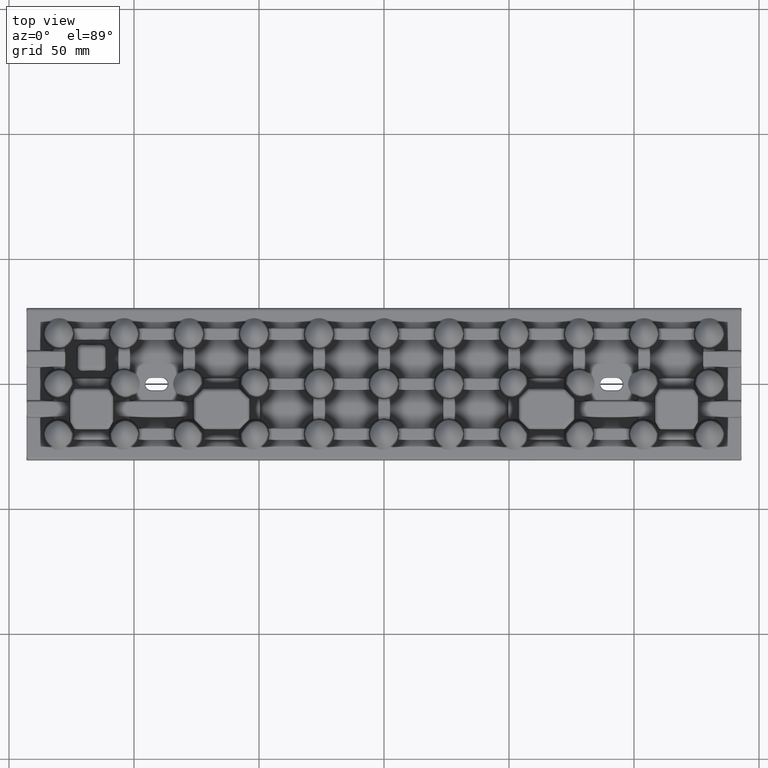
[diagram: clean part render]
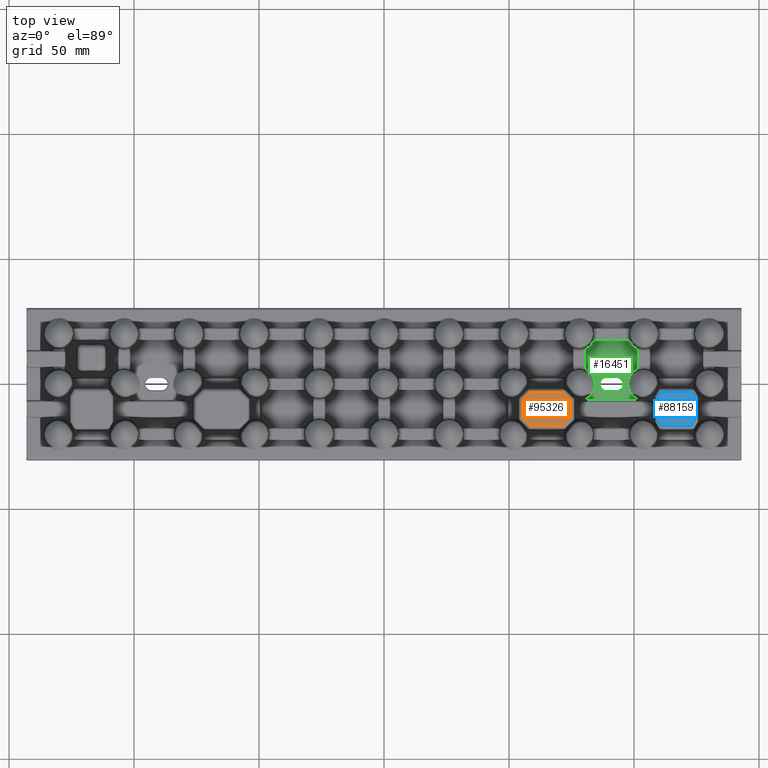
[diagram: same view with three faces highlighted in distinct colors, each labeled with its STEP entity id]
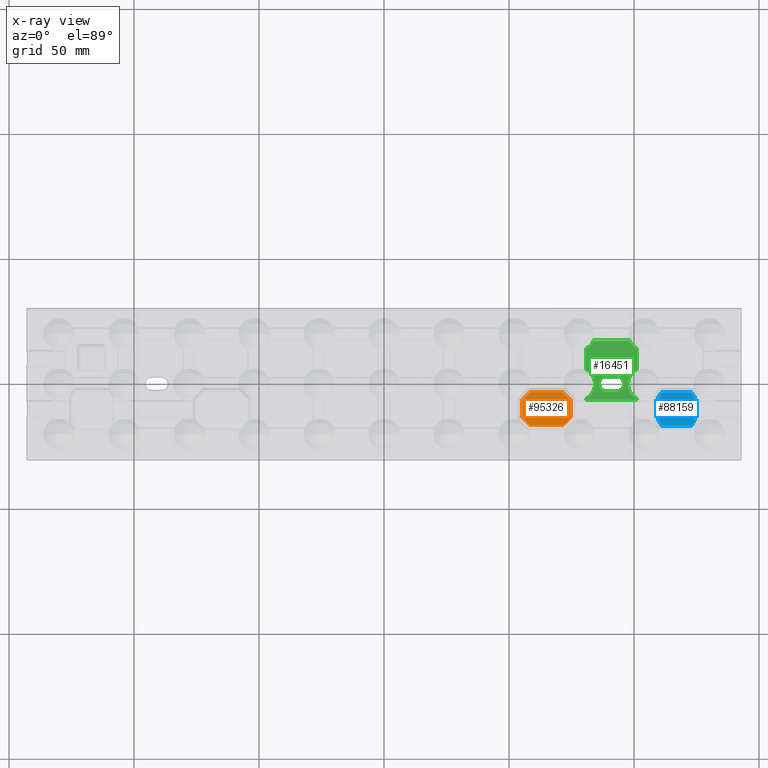
[diagram: x-ray of the same camera — body ghosted, the three highlighted faces saturated]
A machine part, top view with three faces highlighted in distinct colors.
The next image is the same camera in x-ray (body ghosted, the three faces saturated) — at least one of them is partly hidden behind the body in this view.
Their STEP definitions:

[orange] entity #95326 — the highlighted planar face has unit normal (0, 0, -1).
#623 = CARTESIAN_POINT ( 'NONE',  ( 74.91097697223750600, -13.23466900222692600, 6.799999999999999800 ) ) ;
#1122 = CARTESIAN_POINT ( 'NONE',  ( 71.60331889004788800, -16.54232708441655900, 6.799999999999999800 ) ) ;
#5143 = CARTESIAN_POINT ( 'NONE',  ( 57.87533143882816200, -3.457672915583494400, 6.799999999999999800 ) ) ;
#6025 = ORIENTED_EDGE ( 'NONE', *, *, #117788, .T. ) ;
#8063 = DIRECTION ( 'NONE',  ( -0.7071067811865494600, -0.7071067811865455700, -0.0000000000000000000 ) ) ;
#8218 = VERTEX_POINT ( 'NONE', #85997 ) ;
#9365 = AXIS2_PLACEMENT_3D ( 'NONE', #58646, #27067, #102462 ) ;
#14107 = CARTESIAN_POINT ( 'NONE',  ( 74.54232708441645600, -5.875331438828238700, 6.799999999999999800 ) ) ;
#17992 = ORIENTED_EDGE ( 'NONE', *, *, #132163, .T. ) ;
#27067 = DIRECTION ( 'NONE',  ( 0.0000000000000000000, 0.0000000000000000000, -1.000000000000000000 ) ) ;
#38540 = VECTOR ( 'NONE', #8063, 1000.000000000000200 ) ;
#39413 = VECTOR ( 'NONE', #43541, 1000.000000000000100 ) ;
#42873 = VECTOR ( 'NONE', #62626, 1000.000000000000000 ) ;
#43541 = DIRECTION ( 'NONE',  ( 0.7071067811865461300, -0.7071067811865489100, -0.0000000000000000000 ) ) ;
#46242 = LINE ( 'NONE', #127819, #42873 ) ;
#49782 = LINE ( 'NONE', #14107, #132589 ) ;
#50010 = CARTESIAN_POINT ( 'NONE',  ( 71.23466900222682300, -3.089023027762459500, 6.799999999999999800 ) ) ;
#52456 = CARTESIAN_POINT ( 'NONE',  ( 71.60331889004785900, -3.457672915583494900, 6.799999999999999800 ) ) ;
#54349 = ORIENTED_EDGE ( 'NONE', *, *, #56358, .T. ) ;
#54883 = FACE_OUTER_BOUND ( 'NONE', #98913, .T. ) ;
#56358 = EDGE_CURVE ( 'NONE', #132559, #70185, #49782, .T. ) ;
#58646 = CARTESIAN_POINT ( 'NONE',  ( 0.0000000000000000000, 0.0000000000000000000, 6.799999999999999800 ) ) ;
#60803 = DIRECTION ( 'NONE',  ( -0.7071067811865499000, 0.7071067811865452400, -0.0000000000000000000 ) ) ;
#62626 = DIRECTION ( 'NONE',  ( 1.000000000000000000, -0.0000000000000000000, -0.0000000000000000000 ) ) ;
#62878 = CARTESIAN_POINT ( 'NONE',  ( 58.39668110995199900, -3.457672915583494400, 6.799999999999999800 ) ) ;
#63441 = DIRECTION ( 'NONE',  ( 0.0000000000000000000, -1.000000000000000000, -0.0000000000000000000 ) ) ;
#64194 = ORIENTED_EDGE ( 'NONE', *, *, #90524, .T. ) ;
#65001 = ORIENTED_EDGE ( 'NONE', *, *, #121500, .T. ) ;
#65379 = DIRECTION ( 'NONE',  ( 0.7071067811865459100, 0.7071067811865491300, -0.0000000000000000000 ) ) ;
#70185 = VERTEX_POINT ( 'NONE', #131243 ) ;
#70524 = LINE ( 'NONE', #137523, #38540 ) ;
#74842 = LINE ( 'NONE', #118969, #39413 ) ;
#76446 = VERTEX_POINT ( 'NONE', #1122 ) ;
#76742 = VECTOR ( 'NONE', #60803, 1000.000000000000100 ) ;
#77273 = EDGE_CURVE ( 'NONE', #130448, #8218, #70524, .T. ) ;
#78254 = VERTEX_POINT ( 'NONE', #52456 ) ;
#78722 = DIRECTION ( 'NONE',  ( -0.0000000000000000000, 1.000000000000000000, -0.0000000000000000000 ) ) ;
#80088 = CARTESIAN_POINT ( 'NONE',  ( 58.39668110995197700, -16.54232708441655900, 6.799999999999999800 ) ) ;
#80648 = VECTOR ( 'NONE', #63441, 1000.000000000000000 ) ;
#84077 = LINE ( 'NONE', #106302, #80648 ) ;
#85997 = CARTESIAN_POINT ( 'NONE',  ( 55.45767291558339500, -6.396681109952082200, 6.799999999999999800 ) ) ;
#86633 = EDGE_CURVE ( 'NONE', #92886, #104355, #74842, .T. ) ;
#90524 = EDGE_CURVE ( 'NONE', #8218, #92886, #84077, .T. ) ;
#91664 = PLANE ( 'NONE',  #9365 ) ;
#92114 = LINE ( 'NONE', #623, #117439 ) ;
#92886 = VERTEX_POINT ( 'NONE', #123323 ) ;
#93024 = VECTOR ( 'NONE', #102824, 1000.000000000000000 ) ;
#95139 = ORIENTED_EDGE ( 'NONE', *, *, #77273, .T. ) ;
#95326 = ADVANCED_FACE ( 'NONE', ( #54883 ), #91664, .F. ) ;
#96407 = LINE ( 'NONE', #5143, #93024 ) ;
#98913 = EDGE_LOOP ( 'NONE', ( #54349, #6025, #116505, #95139, #64194, #99450, #65001, #17992 ) ) ;
#99450 = ORIENTED_EDGE ( 'NONE', *, *, #86633, .T. ) ;
#102462 = DIRECTION ( 'NONE',  ( -1.000000000000000000, 0.0000000000000000000, -0.0000000000000000000 ) ) ;
#102824 = DIRECTION ( 'NONE',  ( -1.000000000000000000, 2.845181998947741900E-017, -0.0000000000000000000 ) ) ;
#104355 = VERTEX_POINT ( 'NONE', #80088 ) ;
#105433 = LINE ( 'NONE', #50010, #76742 ) ;
#106302 = CARTESIAN_POINT ( 'NONE',  ( 55.45767291558339500, -14.12466856117179500, 6.799999999999999800 ) ) ;
#116505 = ORIENTED_EDGE ( 'NONE', *, *, #124594, .T. ) ;
#117439 = VECTOR ( 'NONE', #65379, 1000.000000000000100 ) ;
#117788 = EDGE_CURVE ( 'NONE', #70185, #78254, #105433, .T. ) ;
#118969 = CARTESIAN_POINT ( 'NONE',  ( 58.76533099777302000, -16.91097697223760600, 6.799999999999999800 ) ) ;
#121500 = EDGE_CURVE ( 'NONE', #104355, #76446, #46242, .T. ) ;
#123323 = CARTESIAN_POINT ( 'NONE',  ( 55.45767291558339500, -13.60331889004796200, 6.799999999999999800 ) ) ;
#124594 = EDGE_CURVE ( 'NONE', #78254, #130448, #96407, .T. ) ;
#127819 = CARTESIAN_POINT ( 'NONE',  ( 72.12466856117171700, -16.54232708441655900, 6.799999999999999800 ) ) ;
#129466 = CARTESIAN_POINT ( 'NONE',  ( 74.54232708441645600, -13.60331889004798000, 6.799999999999999800 ) ) ;
#130448 = VERTEX_POINT ( 'NONE', #62878 ) ;
#131243 = CARTESIAN_POINT ( 'NONE',  ( 74.54232708441645600, -6.396681109952073300, 6.799999999999999800 ) ) ;
#132163 = EDGE_CURVE ( 'NONE', #76446, #132559, #92114, .T. ) ;
#132559 = VERTEX_POINT ( 'NONE', #129466 ) ;
#132589 = VECTOR ( 'NONE', #78722, 1000.000000000000000 ) ;
#137523 = CARTESIAN_POINT ( 'NONE',  ( 55.08902302776235200, -6.765330997773125100, 6.799999999999999800 ) ) ;

[blue] entity #88159 — the highlighted planar face has unit normal (0, 0, -1).
#299 = CARTESIAN_POINT ( 'NONE',  ( 123.0360547701287300, -3.328447840662457600, 5.500000000000000000 ) ) ;
#1145 = ORIENTED_EDGE ( 'NONE', *, *, #54961, .T. ) ;
#4303 = LINE ( 'NONE', #9548, #58401 ) ;
#8401 = EDGE_CURVE ( 'NONE', #113398, #19879, #75602, .T. ) ;
#9548 = CARTESIAN_POINT ( 'NONE',  ( 0.0000000000000000000, -3.328447840662458500, 5.500000000000000000 ) ) ;
#10966 = CARTESIAN_POINT ( 'NONE',  ( 124.1715521593373900, -5.295187010633689800, 5.500000000000000000 ) ) ;
#11862 = CARTESIAN_POINT ( 'NONE',  ( 123.0360547701287600, -16.67155215933749800, 5.500000000000000000 ) ) ;
#13482 = VERTEX_POINT ( 'NONE', #59464 ) ;
#14354 = AXIS2_PLACEMENT_3D ( 'NONE', #92856, #114516, #49979 ) ;
#18188 = VECTOR ( 'NONE', #56697, 1000.000000000000000 ) ;
#19879 = VERTEX_POINT ( 'NONE', #10966 ) ;
#21919 = EDGE_CURVE ( 'NONE', #54450, #85317, #34556, .T. ) ;
#23348 = ORIENTED_EDGE ( 'NONE', *, *, #31681, .T. ) ;
#23609 = FACE_OUTER_BOUND ( 'NONE', #32258, .T. ) ;
#24448 = LINE ( 'NONE', #26031, #56495 ) ;
#25534 = DIRECTION ( 'NONE',  ( -0.4999999999999970000, 0.8660254037844404800, -0.0000000000000000000 ) ) ;
#26031 = CARTESIAN_POINT ( 'NONE',  ( 0.0000000000000000000, -16.67155215933749800, 5.500000000000000000 ) ) ;
#26727 = ORIENTED_EDGE ( 'NONE', *, *, #131737, .T. ) ;
#29357 = LINE ( 'NONE', #109439, #137443 ) ;
#31390 = CARTESIAN_POINT ( 'NONE',  ( 109.8284478406623800, -14.70481298936628000, 5.500000000000000000 ) ) ;
#31681 = EDGE_CURVE ( 'NONE', #19879, #75875, #102574, .T. ) ;
#32258 = EDGE_LOOP ( 'NONE', ( #1145, #33542, #107776, #53812, #74108, #23348, #26727, #72299 ) ) ;
#33542 = ORIENTED_EDGE ( 'NONE', *, *, #97152, .T. ) ;
#34556 = LINE ( 'NONE', #91741, #113803 ) ;
#36920 = DIRECTION ( 'NONE',  ( 1.000000000000000000, -0.0000000000000000000, -0.0000000000000000000 ) ) ;
#45256 = VECTOR ( 'NONE', #25534, 1000.000000000000100 ) ;
#45861 = CARTESIAN_POINT ( 'NONE',  ( 124.1715521593373900, 0.0000000000000000000, 5.500000000000000000 ) ) ;
#49979 = DIRECTION ( 'NONE',  ( -1.000000000000000000, 0.0000000000000000000, -0.0000000000000000000 ) ) ;
#51547 = DIRECTION ( 'NONE',  ( 0.4999999999999970000, 0.8660254037844404800, -0.0000000000000000000 ) ) ;
#53812 = ORIENTED_EDGE ( 'NONE', *, *, #120888, .T. ) ;
#54450 = VERTEX_POINT ( 'NONE', #138321 ) ;
#54961 = EDGE_CURVE ( 'NONE', #85317, #83303, #119042, .T. ) ;
#54997 = DIRECTION ( 'NONE',  ( -0.0000000000000000000, -1.000000000000000000, -0.0000000000000000000 ) ) ;
#56495 = VECTOR ( 'NONE', #36920, 1000.000000000000000 ) ;
#56697 = DIRECTION ( 'NONE',  ( -0.0000000000000000000, 1.000000000000000000, -0.0000000000000000000 ) ) ;
#58071 = CARTESIAN_POINT ( 'NONE',  ( 90.83578088500434000, 52.44406254600670500, 5.500000000000000000 ) ) ;
#58263 = VECTOR ( 'NONE', #54997, 1000.000000000000000 ) ;
#58401 = VECTOR ( 'NONE', #85054, 1000.000000000000000 ) ;
#59464 = CARTESIAN_POINT ( 'NONE',  ( 110.9639452298710300, -16.67155215933749800, 5.500000000000000000 ) ) ;
#66207 = VERTEX_POINT ( 'NONE', #11862 ) ;
#72299 = ORIENTED_EDGE ( 'NONE', *, *, #21919, .T. ) ;
#74108 = ORIENTED_EDGE ( 'NONE', *, *, #8401, .T. ) ;
#75602 = LINE ( 'NONE', #45861, #18188 ) ;
#75875 = VERTEX_POINT ( 'NONE', #299 ) ;
#81494 = PLANE ( 'NONE',  #14354 ) ;
#83303 = VERTEX_POINT ( 'NONE', #31390 ) ;
#85054 = DIRECTION ( 'NONE',  ( -1.000000000000000000, 0.0000000000000000000, -0.0000000000000000000 ) ) ;
#85317 = VERTEX_POINT ( 'NONE', #87980 ) ;
#87980 = CARTESIAN_POINT ( 'NONE',  ( 109.8284478406623800, -5.295187010633648100, 5.500000000000000000 ) ) ;
#88159 = ADVANCED_FACE ( 'NONE', ( #23609 ), #81494, .F. ) ;
#90296 = CARTESIAN_POINT ( 'NONE',  ( 124.1715521593373900, -14.70481298936630000, 5.500000000000000000 ) ) ;
#91741 = CARTESIAN_POINT ( 'NONE',  ( 84.66421911499617200, -48.88090969677211500, 5.500000000000000000 ) ) ;
#92856 = CARTESIAN_POINT ( 'NONE',  ( 0.0000000000000000000, 0.0000000000000000000, 5.500000000000000000 ) ) ;
#95870 = EDGE_CURVE ( 'NONE', #13482, #66207, #24448, .T. ) ;
#97152 = EDGE_CURVE ( 'NONE', #83303, #13482, #29357, .T. ) ;
#98541 = VECTOR ( 'NONE', #51547, 1000.000000000000100 ) ;
#102574 = LINE ( 'NONE', #58071, #45256 ) ;
#105335 = LINE ( 'NONE', #127037, #98541 ) ;
#107776 = ORIENTED_EDGE ( 'NONE', *, *, #95870, .T. ) ;
#109439 = CARTESIAN_POINT ( 'NONE',  ( 76.00396507715186100, 43.88090969677219300, 5.500000000000000000 ) ) ;
#109628 = CARTESIAN_POINT ( 'NONE',  ( 109.8284478406623800, 0.0000000000000000000, 5.500000000000000000 ) ) ;
#113398 = VERTEX_POINT ( 'NONE', #90296 ) ;
#113803 = VECTOR ( 'NONE', #124312, 1000.000000000000100 ) ;
#114516 = DIRECTION ( 'NONE',  ( 0.0000000000000000000, 0.0000000000000000000, -1.000000000000000000 ) ) ;
#119042 = LINE ( 'NONE', #109628, #58263 ) ;
#120342 = DIRECTION ( 'NONE',  ( 0.4999999999999970000, -0.8660254037844404800, -0.0000000000000000000 ) ) ;
#120888 = EDGE_CURVE ( 'NONE', #66207, #113398, #105335, .T. ) ;
#124312 = DIRECTION ( 'NONE',  ( -0.4999999999999970000, -0.8660254037844404800, -0.0000000000000000000 ) ) ;
#127037 = CARTESIAN_POINT ( 'NONE',  ( 99.49603492284869300, -57.44406254600664100, 5.500000000000000000 ) ) ;
#131737 = EDGE_CURVE ( 'NONE', #75875, #54450, #4303, .T. ) ;
#137443 = VECTOR ( 'NONE', #120342, 1000.000000000000100 ) ;
#138321 = CARTESIAN_POINT ( 'NONE',  ( 110.9639452298710200, -3.328447840662458500, 5.500000000000000000 ) ) ;

[green] entity #16451 — the highlighted planar face has unit normal (-0, 0, 1).
#2258 = CARTESIAN_POINT ( 'NONE',  ( 100.9146461179026300, 14.25967941827630600, 2.000000000000000000 ) ) ;
#3492 = CARTESIAN_POINT ( 'NONE',  ( 80.74142219370166600, 14.10473753803655600, 2.000000000000000000 ) ) ;
#4244 = CARTESIAN_POINT ( 'NONE',  ( 100.7091956400272700, -5.622687114068797100, 2.000000000000000000 ) ) ;
#4692 = CARTESIAN_POINT ( 'NONE',  ( 97.54566072956214400, -0.2939077606095398800, 1.999999999999981800 ) ) ;
#5003 = CARTESIAN_POINT ( 'NONE',  ( 81.29080378067114100, 5.622681852093095700, 1.999999999999999100 ) ) ;
#5149 = CARTESIAN_POINT ( 'NONE',  ( 98.90586469504380300, 4.002169440429713500, 2.000000000000010200 ) ) ;
#5474 = CARTESIAN_POINT ( 'NONE',  ( 84.45433928485385900, 0.2939078084702321800, 1.999999999999993100 ) ) ;
#5904 = EDGE_CURVE ( 'NONE', #139320, #47192, #46084, .T. ) ;
#8204 = CARTESIAN_POINT ( 'NONE',  ( 92.99999999999990100, -3.012859658342088100, 2.000000000000000000 ) ) ;
#8682 = DIRECTION ( 'NONE',  ( -1.000000000000000000, -1.084202172485503300E-016, -0.0000000000000000000 ) ) ;
#9182 = CARTESIAN_POINT ( 'NONE',  ( 83.95532036634203600, -2.392986289237579700, 2.000000000000009300 ) ) ;
#9925 = CARTESIAN_POINT ( 'NONE',  ( 92.99999999999990100, -1.592040838891558300E-015, 2.000000000000000000 ) ) ;
#10634 = DIRECTION ( 'NONE',  ( 0.0000000000000000000, -0.0000000000000000000, -1.000000000000000000 ) ) ;
#11050 = VERTEX_POINT ( 'NONE', #120254 ) ;
#11241 = CARTESIAN_POINT ( 'NONE',  ( 80.74142219370168000, 5.895262461964074800, 2.000000000000000000 ) ) ;
#11476 = CARTESIAN_POINT ( 'NONE',  ( 92.99999999999990100, 3.012859658342085000, 2.000000000000000000 ) ) ;
#13128 = VERTEX_POINT ( 'NONE', #40337 ) ;
#13955 = CARTESIAN_POINT ( 'NONE',  ( 83.65569961399081900, 16.91325730845670700, 2.000000000000000400 ) ) ;
#15141 = CARTESIAN_POINT ( 'NONE',  ( 99.95271282254654500, -5.103058955496650600, 2.000000000000006700 ) ) ;
#15608 = CARTESIAN_POINT ( 'NONE',  ( 97.52997864190470500, 0.1664166635660205800, 1.999999999999914500 ) ) ;
#15927 = CARTESIAN_POINT ( 'NONE',  ( 82.04728606312571100, 5.103053900342298600, 2.000000000000011500 ) ) ;
#16072 = CARTESIAN_POINT ( 'NONE',  ( 99.49959096636969500, 4.695405761562813800, 2.000000000000004400 ) ) ;
#16451 = ADVANCED_FACE ( 'NONE', ( #87431, #30108 ), #84189, .T. ) ;
#16792 = EDGE_CURVE ( 'NONE', #120460, #13128, #131415, .T. ) ;
#17560 = ORIENTED_EDGE ( 'NONE', *, *, #84784, .T. ) ;
#18324 = VERTEX_POINT ( 'NONE', #11476 ) ;
#18915 = ORIENTED_EDGE ( 'NONE', *, *, #44261, .T. ) ;
#19226 = EDGE_CURVE ( 'NONE', #47192, #18324, #102297, .T. ) ;
#19254 = CARTESIAN_POINT ( 'NONE',  ( 0.0000000000000000000, -6.228681456733721000, 2.000000000000000000 ) ) ;
#19620 = CARTESIAN_POINT ( 'NONE',  ( 0.0000000000000000000, 0.0000000000000000000, 2.000000000000000000 ) ) ;
#20102 = CARTESIAN_POINT ( 'NONE',  ( 83.57702726183697500, -3.232161060459737300, 2.000000000000008900 ) ) ;
#20845 = DIRECTION ( 'NONE',  ( 1.000000000000000000, 0.0000000000000000000, 0.0000000000000000000 ) ) ;
#22266 = CARTESIAN_POINT ( 'NONE',  ( 92.99999999999990100, -1.592040838891558300E-015, 2.000000000000000000 ) ) ;
#22346 = ORIENTED_EDGE ( 'NONE', *, *, #16792, .T. ) ;
#22624 = VERTEX_POINT ( 'NONE', #138104 ) ;
#22910 = EDGE_CURVE ( 'NONE', #13128, #75849, #69798, .T. ) ;
#26070 = CARTESIAN_POINT ( 'NONE',  ( 99.28642527897027000, -4.470657850564890600, 1.999999999999985300 ) ) ;
#26092 = VECTOR ( 'NONE', #121115, 1000.000000000000000 ) ;
#26491 = ORIENTED_EDGE ( 'NONE', *, *, #110082, .T. ) ;
#26528 = CARTESIAN_POINT ( 'NONE',  ( 97.59092516754822100, 0.6226886839275341800, 1.999999999999898500 ) ) ;
#26837 = CARTESIAN_POINT ( 'NONE',  ( 82.71357355403776500, 4.470653578053853200, 2.000000000000009300 ) ) ;
#26984 = CARTESIAN_POINT ( 'NONE',  ( 100.6964528388064100, 5.642020952081572300, 1.999999999999999600 ) ) ;
#29770 = EDGE_CURVE ( 'NONE', #75849, #11050, #117508, .T. ) ;
#30108 = FACE_BOUND ( 'NONE', #124144, .T. ) ;
#31008 = CARTESIAN_POINT ( 'NONE',  ( 83.09413437209032300, -4.002165768863382500, 1.999999999999998700 ) ) ;
#32854 = CARTESIAN_POINT ( 'NONE',  ( 88.99999999999990100, -3.012859658342088600, 2.000000000000000000 ) ) ;
#33187 = DIRECTION ( 'NONE',  ( 1.000000000000000000, 0.0000000000000000000, 0.0000000000000000000 ) ) ;
#33824 = ORIENTED_EDGE ( 'NONE', *, *, #60069, .T. ) ;
#34159 = CARTESIAN_POINT ( 'NONE',  ( 101.2585778062981300, 14.43582890270260500, 2.000000000000000000 ) ) ;
#34991 = CARTESIAN_POINT ( 'NONE',  ( 99.97628796192455500, 14.87288671531227500, 1.999999999999997300 ) ) ;
#35736 = VECTOR ( 'NONE', #8682, 1000.000000000000000 ) ;
#35740 = CARTESIAN_POINT ( 'NONE',  ( 83.47911510040512400, 16.58314399929307800, 1.999999999999998200 ) ) ;
#36420 = ORIENTED_EDGE ( 'NONE', *, *, #19226, .T. ) ;
#36511 = CARTESIAN_POINT ( 'NONE',  ( 100.9777361400929000, -5.768743665336351100, 2.000000000000000000 ) ) ;
#36959 = CARTESIAN_POINT ( 'NONE',  ( 98.72545752701127200, -3.742072505712669800, 1.999999999999991300 ) ) ;
#37404 = CARTESIAN_POINT ( 'NONE',  ( 97.70178713935736400, 1.224852338807983500, 2.000000000000018700 ) ) ;
#37542 = VERTEX_POINT ( 'NONE', #38433 ) ;
#37723 = CARTESIAN_POINT ( 'NONE',  ( 83.27454168186356800, 3.742069278325694800, 1.999999999999990900 ) ) ;
#38433 = CARTESIAN_POINT ( 'NONE',  ( 101.2585778062981300, -6.228681456733721000, 2.000000000000000000 ) ) ;
#40017 = AXIS2_PLACEMENT_3D ( 'NONE', #9925, #85445, #20845 ) ;
#40337 = CARTESIAN_POINT ( 'NONE',  ( 80.74142219370166600, 14.10473753803655600, 2.000000000000000000 ) ) ;
#40985 = DIRECTION ( 'NONE',  ( 1.000000000000000000, -0.0000000000000000000, 0.0000000000000000000 ) ) ;
#41215 = VECTOR ( 'NONE', #91602, 1000.000000000000000 ) ;
#41481 = CARTESIAN_POINT ( 'NONE',  ( 84.47002088264865400, -0.1664163271963571000, 2.000000000000079500 ) ) ;
#41810 = CARTESIAN_POINT ( 'NONE',  ( 82.50040795052747500, -4.695401091043977200, 1.999999999999997300 ) ) ;
#42330 = VECTOR ( 'NONE', #110465, 1000.000000000000000 ) ;
#42825 = ORIENTED_EDGE ( 'NONE', *, *, #115080, .T. ) ;
#44261 = EDGE_CURVE ( 'NONE', #18324, #116317, #110153, .T. ) ;
#45646 = CARTESIAN_POINT ( 'NONE',  ( 83.56417109729717700, 17.25857780629792200, 2.000000000000000000 ) ) ;
#45802 = CARTESIAN_POINT ( 'NONE',  ( 99.16839004852059200, 15.65812118467246900, 2.000000000000007100 ) ) ;
#46084 = CIRCLE ( 'NONE', #89497, 3.012859658342081900 ) ;
#46593 = CARTESIAN_POINT ( 'NONE',  ( 82.83279374736129300, 15.65953612798235600, 1.999999999999999600 ) ) ;
#47056 = CARTESIAN_POINT ( 'NONE',  ( 88.99999999999990100, 3.012859658342084600, 2.000000000000000000 ) ) ;
#47192 = VERTEX_POINT ( 'NONE', #47056 ) ;
#47765 = CARTESIAN_POINT ( 'NONE',  ( 98.02439335447299100, -2.386241384828329700, 2.000000000000074600 ) ) ;
#48230 = CARTESIAN_POINT ( 'NONE',  ( 97.94332345905192500, 2.105555699566501500, 2.000000000000032000 ) ) ;
#48534 = CARTESIAN_POINT ( 'NONE',  ( 83.97560690435196300, 2.386239966865963500, 2.000000000000096800 ) ) ;
#49944 = VERTEX_POINT ( 'NONE', #51743 ) ;
#51462 = VECTOR ( 'NONE', #120222, 1000.000000000000000 ) ;
#51743 = CARTESIAN_POINT ( 'NONE',  ( 80.74142219370168000, -6.228681456733721000, 2.000000000000000000 ) ) ;
#52201 = CARTESIAN_POINT ( 'NONE',  ( 84.40907545387112500, -0.6226882705835391500, 1.999999999999935400 ) ) ;
#52653 = CARTESIAN_POINT ( 'NONE',  ( 81.30354649653853000, -5.642015559981270000, 1.999999999999999600 ) ) ;
#55217 = DIRECTION ( 'NONE',  ( 1.000000000000000000, 1.084202172485503300E-016, -0.0000000000000000000 ) ) ;
#56642 = CARTESIAN_POINT ( 'NONE',  ( 98.52148709034840100, 16.58177917167580200, 1.999999999999995800 ) ) ;
#57373 = CARTESIAN_POINT ( 'NONE',  ( 82.02957030919984000, 14.87734311202351400, 2.000000000000000000 ) ) ;
#58568 = CARTESIAN_POINT ( 'NONE',  ( 97.69694628773152100, -1.203030275187786400, 1.999999999999884300 ) ) ;
#58881 = B_SPLINE_CURVE_WITH_KNOTS ( 'NONE', 3,
 ( #111868, #36511, #4244, #79750, #15141, #90672, #26070, #101451, #36959, #112341, #47765, #123222, #58568, #134193, #69370, #4692, #80230, #15608, #91118, #26528, #101926, #37404, #112781, #48230, #123701, #59036, #134658, #69845, #5149, #80686, #16072, #91585, #26984, #102385 ),
 .UNSPECIFIED., .F., .F.,
 ( 4, 2, 2, 2, 2, 2, 2, 2, 2, 2, 2, 2, 2, 2, 2, 2, 4 ),
 ( 0.0000000000000000000, 0.0009152001100219544600, 0.001830400220043908900, 0.002745600330065863500, 0.003660800440087817800, 0.005491200660131746000, 0.006406400770153710400, 0.006864000825164688600, 0.007321600880175666900, 0.007779200935186644300, 0.008236800990197624300, 0.009152001100219582500, 0.01006720121024153900, 0.01098240132026349700, 0.01189760143028545600, 0.01281280154030741200, 0.01464320176035129700 ),
 .UNSPECIFIED. ) ;
#59036 = CARTESIAN_POINT ( 'NONE',  ( 98.28458263730324500, 2.956906219718928000, 2.000000000000008000 ) ) ;
#59349 = CARTESIAN_POINT ( 'NONE',  ( 84.30305454915094300, 1.203029835227335000, 1.999999999999976700 ) ) ;
#60069 = EDGE_CURVE ( 'NONE', #11050, #49944, #106895, .T. ) ;
#61986 = VECTOR ( 'NONE', #40985, 1000.000000000000000 ) ;
#62141 = CARTESIAN_POINT ( 'NONE',  ( 84.45141358982896000, -0.3189268847337716200, 1.999999999999935400 ) ) ;
#63010 = CARTESIAN_POINT ( 'NONE',  ( 84.29821374733818100, -1.224851636296285800, 2.000000000000094100 ) ) ;
#63753 = DIRECTION ( 'NONE',  ( 9.251858538542944200E-016, -1.000000000000000000, 0.0000000000000000000 ) ) ;
#67423 = CARTESIAN_POINT ( 'NONE',  ( 98.19330319997796200, 17.25857780629792200, 2.000000000000000000 ) ) ;
#68189 = CARTESIAN_POINT ( 'NONE',  ( 81.08534969252293900, 14.25968293559966000, 1.999999999999999600 ) ) ;
#69135 = VERTEX_POINT ( 'NONE', #105076 ) ;
#69370 = CARTESIAN_POINT ( 'NONE',  ( 97.58706069679486500, -0.5983917562021888700, 1.999999999999981800 ) ) ;
#69695 = CARTESIAN_POINT ( 'NONE',  ( 80.74142219370168000, 5.895262461964074800, 2.000000000000000000 ) ) ;
#69798 = LINE ( 'NONE', #80699, #41215 ) ;
#69845 = CARTESIAN_POINT ( 'NONE',  ( 98.73330831940745600, 3.753772050270857800, 2.000000000000001800 ) ) ;
#70160 = CARTESIAN_POINT ( 'NONE',  ( 84.41293984678490900, 0.5983916776171788200, 1.999999999999994000 ) ) ;
#70907 = LINE ( 'NONE', #34159, #42330 ) ;
#72143 = AXIS2_PLACEMENT_3D ( 'NONE', #19620, #138607, #73852 ) ;
#73170 = CARTESIAN_POINT ( 'NONE',  ( 80.74142219370168000, -6.403733341286148600, 2.000000000000000000 ) ) ;
#73852 = DIRECTION ( 'NONE',  ( 1.000000000000000000, 0.0000000000000000000, 0.0000000000000000000 ) ) ;
#73876 = CARTESIAN_POINT ( 'NONE',  ( 84.05667704116817200, -2.105554224465251900, 2.000000000000015500 ) ) ;
#75310 = CARTESIAN_POINT ( 'NONE',  ( 88.99999999999990100, -1.836970198721029200E-015, 2.000000000000000000 ) ) ;
#75849 = VERTEX_POINT ( 'NONE', #11241 ) ;
#77281 = CARTESIAN_POINT ( 'NONE',  ( 101.2585778062981300, -5.564171097297415400, 2.000000000000000000 ) ) ;
#77836 = CARTESIAN_POINT ( 'NONE',  ( 101.2585778062981300, 14.10473258521236800, 2.000000000000000000 ) ) ;
#79750 = CARTESIAN_POINT ( 'NONE',  ( 100.1973237694055600, -5.290544885426503400, 2.000000000000000000 ) ) ;
#80047 = LINE ( 'NONE', #77281, #51462 ) ;
#80230 = CARTESIAN_POINT ( 'NONE',  ( 97.52784603773389400, -0.1409548011277643500, 1.999999999999914500 ) ) ;
#80544 = CARTESIAN_POINT ( 'NONE',  ( 81.80267525440316900, 5.290539659684372800, 1.999999999999999600 ) ) ;
#80686 = CARTESIAN_POINT ( 'NONE',  ( 99.28817453881825400, 4.472423836472681400, 2.000000000000009800 ) ) ;
#80699 = CARTESIAN_POINT ( 'NONE',  ( 80.74142219370168000, 5.564171097297414500, 2.000000000000000000 ) ) ;
#80995 = CARTESIAN_POINT ( 'NONE',  ( 84.47215337153561200, 0.1409548759295878300, 2.000000000000079900 ) ) ;
#84189 = PLANE ( 'NONE',  #72143 ) ;
#84694 = CARTESIAN_POINT ( 'NONE',  ( 83.71541725787420800, -2.956903784787150400, 2.000000000000008900 ) ) ;
#84784 = EDGE_CURVE ( 'NONE', #37542, #69135, #80047, .T. ) ;
#84884 = ORIENTED_EDGE ( 'NONE', *, *, #97641, .T. ) ;
#85445 = DIRECTION ( 'NONE',  ( 0.0000000000000000000, -0.0000000000000000000, -1.000000000000000000 ) ) ;
#86148 = DIRECTION ( 'NONE',  ( 1.000000000000000000, 0.0000000000000000000, 0.0000000000000000000 ) ) ;
#86777 = VERTEX_POINT ( 'NONE', #122706 ) ;
#86966 = ORIENTED_EDGE ( 'NONE', *, *, #5904, .T. ) ;
#87431 = FACE_OUTER_BOUND ( 'NONE', #89472, .T. ) ;
#88344 = AXIS2_PLACEMENT_3D ( 'NONE', #22266, #97693, #33187 ) ;
#89466 = CARTESIAN_POINT ( 'NONE',  ( 83.80669589420914200, 17.25857780629792200, 2.000000000000000000 ) ) ;
#89472 = EDGE_LOOP ( 'NONE', ( #17560, #42825, #122114, #134000, #84884, #22346, #104972, #132426, #33824, #127547 ) ) ;
#89497 = AXIS2_PLACEMENT_3D ( 'NONE', #75310, #10634, #86148 ) ;
#90672 = CARTESIAN_POINT ( 'NONE',  ( 99.49641263634072200, -4.692200443846061800, 2.000000000000007100 ) ) ;
#90683 = LINE ( 'NONE', #19254, #61986 ) ;
#91118 = CARTESIAN_POINT ( 'NONE',  ( 97.54858652406925000, 0.3189271978088089600, 1.999999999999899000 ) ) ;
#91437 = CARTESIAN_POINT ( 'NONE',  ( 82.50358617134840200, 4.692195885224822200, 2.000000000000012000 ) ) ;
#91585 = CARTESIAN_POINT ( 'NONE',  ( 100.1854359512885500, 5.311910533037608900, 2.000000000000003600 ) ) ;
#91602 = DIRECTION ( 'NONE',  ( 9.251858538542944200E-016, -1.000000000000000000, 0.0000000000000000000 ) ) ;
#95551 = CARTESIAN_POINT ( 'NONE',  ( 83.26669093626385600, -3.753768725152128100, 2.000000000000008900 ) ) ;
#97407 = VERTEX_POINT ( 'NONE', #116943 ) ;
#97641 = EDGE_CURVE ( 'NONE', #97407, #120460, #115523, .T. ) ;
#97693 = DIRECTION ( 'NONE',  ( 0.0000000000000000000, -0.0000000000000000000, -1.000000000000000000 ) ) ;
#99487 = CARTESIAN_POINT ( 'NONE',  ( 100.5891143321947100, 14.44384312789919500, 1.999999999999997800 ) ) ;
#101451 = CARTESIAN_POINT ( 'NONE',  ( 98.90153265301825100, -3.996449074272910600, 1.999999999999985300 ) ) ;
#101926 = CARTESIAN_POINT ( 'NONE',  ( 97.61633695187921900, 0.7741050196706413800, 2.000000000000017800 ) ) ;
#102254 = CARTESIAN_POINT ( 'NONE',  ( 83.09846637658112900, 3.996445466360838400, 2.000000000000009300 ) ) ;
#102297 = LINE ( 'NONE', #130804, #134566 ) ;
#102385 = CARTESIAN_POINT ( 'NONE',  ( 101.2585778062981300, 5.895267414788310800, 2.000000000000000000 ) ) ;
#102916 = CIRCLE ( 'NONE', #88344, 3.012859658342081900 ) ;
#103458 = VECTOR ( 'NONE', #63753, 1000.000000000000000 ) ;
#104972 = ORIENTED_EDGE ( 'NONE', *, *, #22910, .T. ) ;
#105076 = CARTESIAN_POINT ( 'NONE',  ( 101.2585778062981300, -5.895267414787638500, 2.000000000000000000 ) ) ;
#105419 = EDGE_CURVE ( 'NONE', #86777, #97407, #106827, .T. ) ;
#106366 = CARTESIAN_POINT ( 'NONE',  ( 82.71182433829459100, -4.472419512898084400, 1.999999999999998700 ) ) ;
#106588 = EDGE_CURVE ( 'NONE', #118761, #139320, #121774, .T. ) ;
#106827 = B_SPLINE_CURVE_WITH_KNOTS ( 'NONE', 3,
 ( #77836, #2258, #99487, #34991, #110362, #45802, #121256, #56642, #132206, #67423 ),
 .UNSPECIFIED., .F., .F.,
 ( 4, 2, 2, 2, 4 ),
 ( 0.0000000000000000000, 0.001120796366553050800, 0.002241592733106101600, 0.003362389099659152400, 0.004483185466212203200 ),
 .UNSPECIFIED. ) ;
#106895 = LINE ( 'NONE', #73170, #103458 ) ;
#107397 = CARTESIAN_POINT ( 'NONE',  ( 83.80669589420914200, 17.25857780629792200, 2.000000000000000000 ) ) ;
#110082 = EDGE_CURVE ( 'NONE', #116317, #118761, #102916, .T. ) ;
#110153 = CIRCLE ( 'NONE', #40017, 3.012859658342081900 ) ;
#110362 = CARTESIAN_POINT ( 'NONE',  ( 99.68756667448261100, 15.11980680625902500, 2.000000000000008000 ) ) ;
#110465 = DIRECTION ( 'NONE',  ( 0.0000000000000000000, 1.000000000000000000, -0.0000000000000000000 ) ) ;
#111105 = CARTESIAN_POINT ( 'NONE',  ( 83.06849332393623800, 15.95706177796518700, 1.999999999999997800 ) ) ;
#111868 = CARTESIAN_POINT ( 'NONE',  ( 101.2585778062981300, -5.895267414787638500, 2.000000000000000000 ) ) ;
#112341 = CARTESIAN_POINT ( 'NONE',  ( 98.25811478839773400, -2.951956391537780900, 1.999999999999990500 ) ) ;
#112781 = CARTESIAN_POINT ( 'NONE',  ( 97.77190378010436700, 1.521479970336789800, 2.000000000000032000 ) ) ;
#113098 = CARTESIAN_POINT ( 'NONE',  ( 83.74188500128251200, 2.951954209506136200, 1.999999999999990900 ) ) ;
#114224 = EDGE_CURVE ( 'NONE', #49944, #37542, #90683, .T. ) ;
#115080 = EDGE_CURVE ( 'NONE', #69135, #22624, #58881, .T. ) ;
#115523 = LINE ( 'NONE', #45646, #26092 ) ;
#116317 = VERTEX_POINT ( 'NONE', #117603 ) ;
#116943 = CARTESIAN_POINT ( 'NONE',  ( 98.19330319997796200, 17.25857780629792200, 2.000000000000000000 ) ) ;
#117250 = CARTESIAN_POINT ( 'NONE',  ( 81.81456304641696400, -5.311905181236158800, 1.999999999999997300 ) ) ;
#117508 = B_SPLINE_CURVE_WITH_KNOTS ( 'NONE', 3,
 ( #69695, #134526, #5003, #80544, #15927, #91437, #26837, #102254, #37723, #113098, #48534, #124023, #59349, #134965, #70160, #5474, #80995, #41481, #62141, #52201, #127725, #63010, #138625, #73876, #9182, #84694, #20102, #95551, #31008, #106366, #41810, #117250, #52653, #128182 ),
 .UNSPECIFIED., .F., .F.,
 ( 4, 2, 2, 2, 2, 2, 2, 2, 2, 2, 2, 2, 2, 2, 2, 2, 4 ),
 ( 0.0000000000000000000, 0.0009151995825376003000, 0.001830399165075200600, 0.002745598747612800800, 0.003660798330150401200, 0.005491197495225622400, 0.006406397077763227600, 0.006863996869032030200, 0.007321596660300832800, 0.007779196451569636200, 0.008236796242838437900, 0.009151995825376044900, 0.01006719540791364800, 0.01098239499045125500, 0.01189759457298885900, 0.01281279415552646600, 0.01464319332060164300 ),
 .UNSPECIFIED. ) ;
#117603 = CARTESIAN_POINT ( 'NONE',  ( 96.01285965834198100, -1.592040838891558300E-015, 2.000000000000000000 ) ) ;
#118761 = VERTEX_POINT ( 'NONE', #8204 ) ;
#120222 = DIRECTION ( 'NONE',  ( 0.0000000000000000000, 1.000000000000000000, -0.0000000000000000000 ) ) ;
#120254 = CARTESIAN_POINT ( 'NONE',  ( 80.74142219370168000, -5.895262461963432600, 2.000000000000000000 ) ) ;
#120460 = VERTEX_POINT ( 'NONE', #107397 ) ;
#121115 = DIRECTION ( 'NONE',  ( -1.000000000000000000, 0.0000000000000000000, 0.0000000000000000000 ) ) ;
#121256 = CARTESIAN_POINT ( 'NONE',  ( 98.93539145744713900, 15.95158123760609400, 1.999999999999995800 ) ) ;
#121774 = LINE ( 'NONE', #138128, #35736 ) ;
#122034 = CARTESIAN_POINT ( 'NONE',  ( 82.31399054202033500, 15.12124616751534800, 2.000000000000000000 ) ) ;
#122114 = ORIENTED_EDGE ( 'NONE', *, *, #125783, .T. ) ;
#122706 = CARTESIAN_POINT ( 'NONE',  ( 101.2585778062981300, 14.10473258521236800, 2.000000000000000000 ) ) ;
#123222 = CARTESIAN_POINT ( 'NONE',  ( 97.76679609838961900, -1.501750415376932100, 2.000000000000074600 ) ) ;
#123701 = CARTESIAN_POINT ( 'NONE',  ( 98.04467993314933900, 2.392988068723489000, 2.000000000000008400 ) ) ;
#124023 = CARTESIAN_POINT ( 'NONE',  ( 84.23320462876334600, 1.501749733962734100, 2.000000000000096400 ) ) ;
#124144 = EDGE_LOOP ( 'NONE', ( #127044, #86966, #36420, #18915, #26491 ) ) ;
#125783 = EDGE_CURVE ( 'NONE', #22624, #86777, #70907, .T. ) ;
#127044 = ORIENTED_EDGE ( 'NONE', *, *, #106588, .T. ) ;
#127547 = ORIENTED_EDGE ( 'NONE', *, *, #114224, .T. ) ;
#127725 = CARTESIAN_POINT ( 'NONE',  ( 84.38366378025251900, -0.7741045575510490100, 2.000000000000093700 ) ) ;
#128182 = CARTESIAN_POINT ( 'NONE',  ( 80.74142219370168000, -5.895262461963432600, 2.000000000000000000 ) ) ;
#130804 = CARTESIAN_POINT ( 'NONE',  ( -3.266548986968408800E-016, 3.012859658342074800, 2.000000000000000000 ) ) ;
#131415 = B_SPLINE_CURVE_WITH_KNOTS ( 'NONE', 3,
 ( #89466, #13955, #35740, #111105, #46593, #122034, #57373, #132986, #68189, #3492 ),
 .UNSPECIFIED., .F., .F.,
 ( 4, 2, 2, 2, 4 ),
 ( 0.0000000000000000000, 0.001121987590162197400, 0.002243975180324394800, 0.003365962770486588300, 0.004487950360648781800 ),
 .UNSPECIFIED. ) ;
#132206 = CARTESIAN_POINT ( 'NONE',  ( 98.34436900752137900, 16.91309701717557000, 2.000000000000000400 ) ) ;
#132426 = ORIENTED_EDGE ( 'NONE', *, *, #29770, .T. ) ;
#132986 = CARTESIAN_POINT ( 'NONE',  ( 81.41220390426794000, 14.44442677687802100, 2.000000000000000000 ) ) ;
#134000 = ORIENTED_EDGE ( 'NONE', *, *, #105419, .T. ) ;
#134193 = CARTESIAN_POINT ( 'NONE',  ( 97.61217881755493400, -0.7500908734365245900, 1.999999999999883900 ) ) ;
#134526 = CARTESIAN_POINT ( 'NONE',  ( 81.02226353353209700, 5.768738490483814400, 2.000000000000000000 ) ) ;
#134566 = VECTOR ( 'NONE', #55217, 1000.000000000000000 ) ;
#134658 = CARTESIAN_POINT ( 'NONE',  ( 98.42297240125411400, 3.232163757585409400, 2.000000000000002700 ) ) ;
#134965 = CARTESIAN_POINT ( 'NONE',  ( 84.38782184730843000, 0.7500907228996242000, 1.999999999999976200 ) ) ;
#138104 = CARTESIAN_POINT ( 'NONE',  ( 101.2585778062981300, 5.895267414788310800, 2.000000000000000000 ) ) ;
#138128 = CARTESIAN_POINT ( 'NONE',  ( 88.99999999999990100, -3.012859658342088600, 2.000000000000000000 ) ) ;
#138607 = DIRECTION ( 'NONE',  ( -0.0000000000000000000, 0.0000000000000000000, 1.000000000000000000 ) ) ;
#138625 = CARTESIAN_POINT ( 'NONE',  ( 84.22809700027242700, -1.521479029732073700, 2.000000000000015100 ) ) ;
#139320 = VERTEX_POINT ( 'NONE', #32854 ) ;